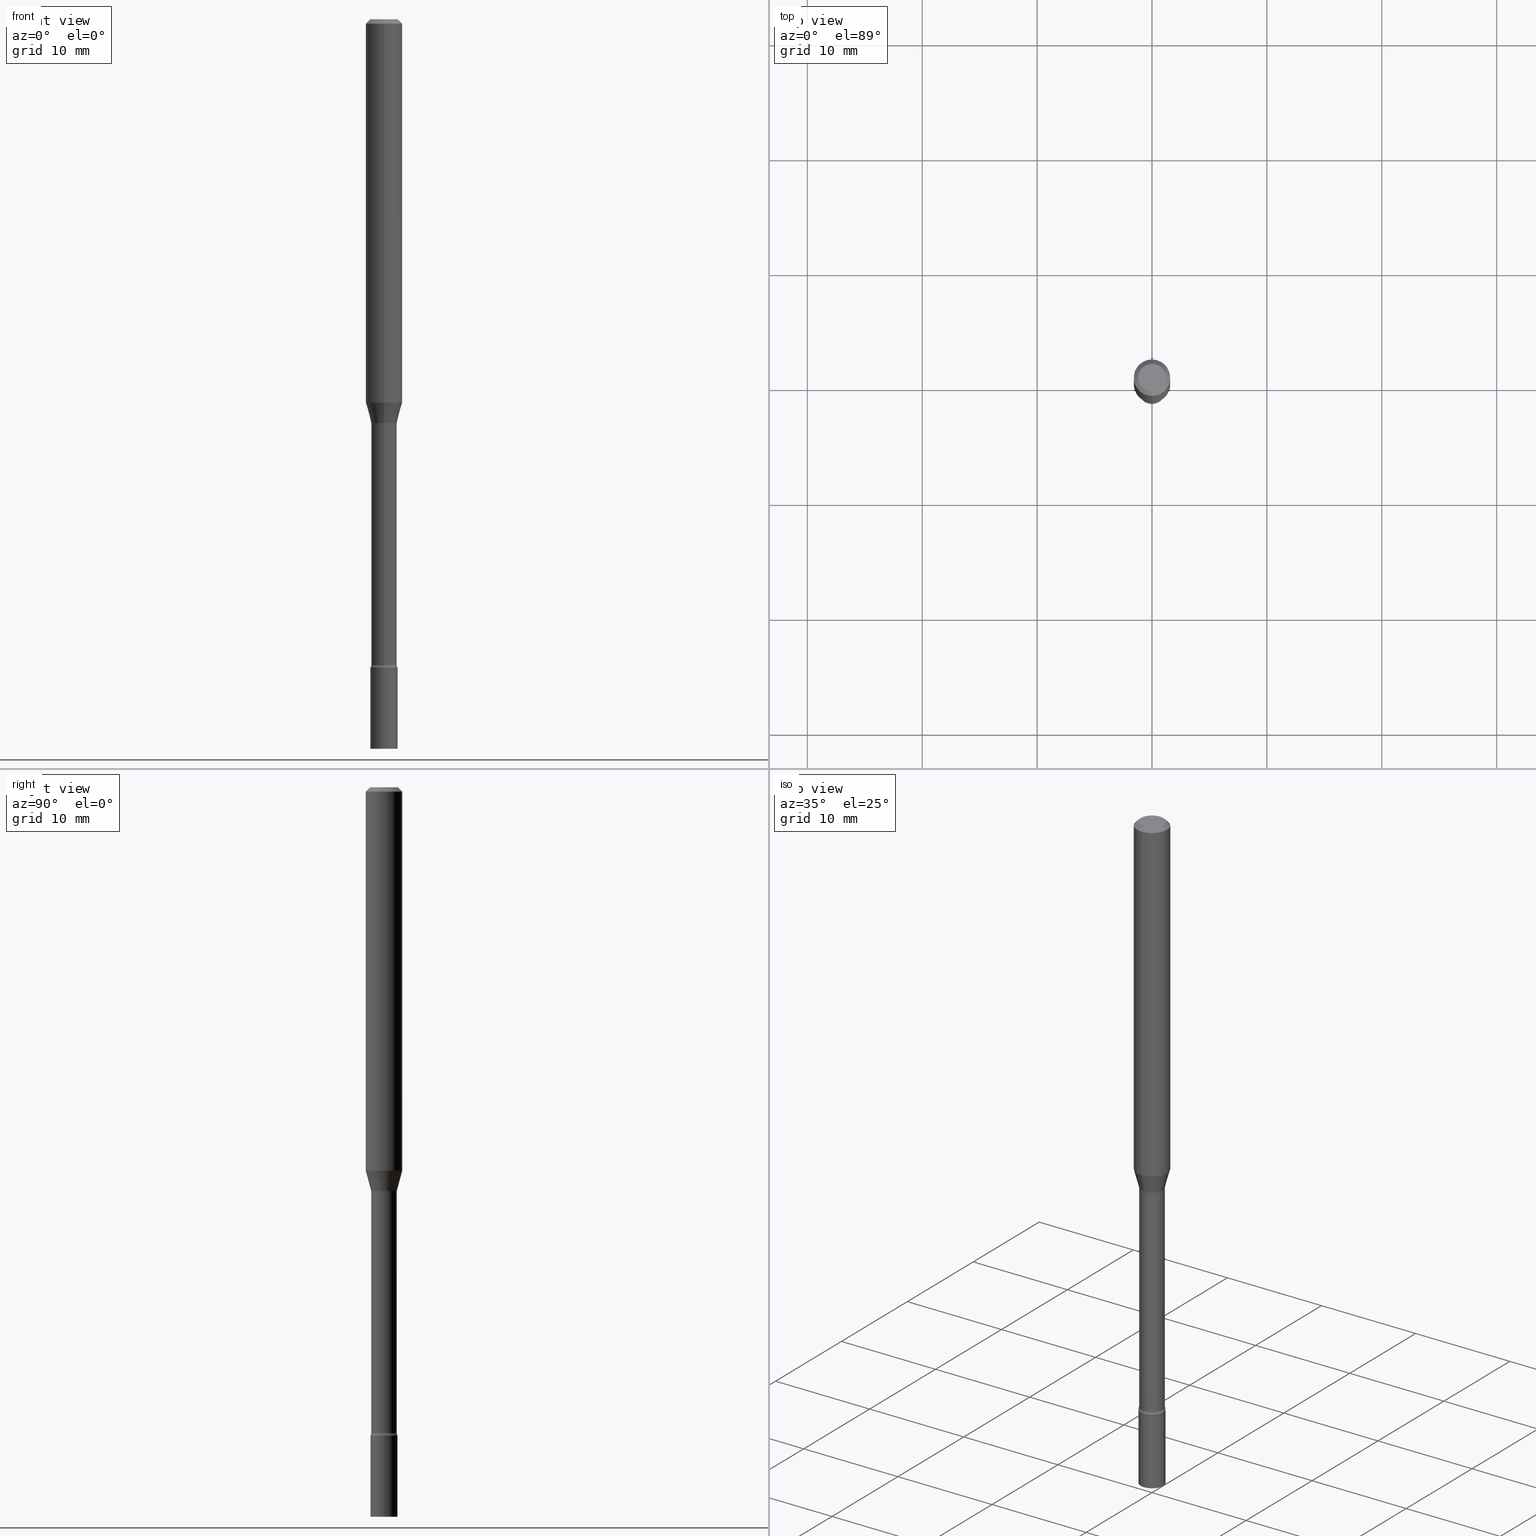
[diagram: canonical four-view strip — front | top / right | iso, engineering-drawing reading convention]
A machine part, canonical four-view strip (front | top / right | iso — engineering-drawing reading convention). The complete STEP part file that produces these views, byte-faithful:
ISO-10303-21;
HEADER;
FILE_DESCRIPTION (( 'STEP AP203' ),
    '1' );
FILE_NAME ('03448.STEP',
    '2024-03-08T21:23:43',
    ( '' ),
    ( '' ),
    'SwSTEP 2.0',
    'SolidWorks 2023',
    '' );
FILE_SCHEMA (( 'CONFIG_CONTROL_DESIGN' ));
ENDSEC;

DATA;
#1 = ORIENTED_EDGE ( 'NONE', *, *, #256, .T. ) ;
#2 = ORIENTED_EDGE ( 'NONE', *, *, #76, .F. ) ;
#3 = CARTESIAN_POINT ( 'NONE',  ( 3.389309736411832924E-29, -4.839174378695849730E-15, -1.385974787463811086 ) ) ;
#4 = ORIENTED_EDGE ( 'NONE', *, *, #36, .F. ) ;
#5 = AXIS2_PLACEMENT_3D ( 'NONE', #140, #389, #105 ) ;
#6 = AXIS2_PLACEMENT_3D ( 'NONE', #167, #330, #489 ) ;
#7 = CARTESIAN_POINT ( 'NONE',  ( 0.000000000000000000, 0.000000000000000000, 0.000000000000000000 ) ) ;
#8 = ORIENTED_EDGE ( 'NONE', *, *, #291, .F. ) ;
#9 = DIRECTION ( 'NONE',  ( -6.982962677686265922E-15, -1.000000000000000000, 3.491531319664936376E-15 ) ) ;
#10 = ORIENTED_EDGE ( 'NONE', *, *, #399, .T. ) ;
#11 = CARTESIAN_POINT ( 'NONE',  ( 4.440892098500625669E-16, 0.06250000000000000000, -2.182207074790585235E-16 ) ) ;
#12 = FACE_OUTER_BOUND ( 'NONE', #117, .T. ) ;
#13 = PRODUCT_DEFINITION ( 'UNKNOWN', '', #429, #197 ) ;
#14 = CARTESIAN_POINT ( 'NONE',  ( -3.087245492643026346E-16, -0.04421111260566881057, -1.382092501787272942 ) ) ;
#15 = ADVANCED_FACE ( 'NONE', ( #445 ), #293, .T. ) ;
#16 = CARTESIAN_POINT ( 'NONE',  ( -4.098999091801499574E-16, -0.05870000000000485246, -1.385974787463810864 ) ) ;
#17 = DIRECTION ( 'NONE',  ( 4.937700262164548042E-15, 0.7071067811865451302, -0.7071067811865499042 ) ) ;
#18 = AXIS2_PLACEMENT_3D ( 'NONE', #3, #161, #484 ) ;
#19 = VERTEX_POINT ( 'NONE', #14 ) ;
#20 = DIRECTION ( 'NONE',  ( 1.839019923739598738E-15, 0.2588190451025247363, 0.9659258262890673130 ) ) ;
#21 = FACE_OUTER_BOUND ( 'NONE', #156, .T. ) ;
#22 = DIRECTION ( 'NONE',  ( -2.445433904763820190E-29, 3.491531319664936376E-15, 1.000000000000000000 ) ) ;
#23 = CC_DESIGN_DATE_AND_TIME_ASSIGNMENT ( #141, #224, ( #13 ) ) ;
#24 = PERSON_AND_ORGANIZATION_ROLE ( 'creator' ) ;
#25 = DIRECTION ( 'NONE',  ( -2.445433904763820190E-29, 3.491531319664936376E-15, 1.000000000000000000 ) ) ;
#26 = DIRECTION ( 'NONE',  ( 1.000000000000000000, -6.982962677686260400E-15, 0.000000000000000000 ) ) ;
#27 = DATE_AND_TIME ( #253, #39 ) ;
#28 =( NAMED_UNIT ( * ) PLANE_ANGLE_UNIT ( ) SI_UNIT ( $, .RADIAN. ) );
#29 = CARTESIAN_POINT ( 'NONE',  ( 5.431308702480443986E-29, -7.754691060975823701E-15, -2.221000000000000085 ) ) ;
#30 = EDGE_CURVE ( 'NONE', #278, #281, #381, .T. ) ;
#31 = APPROVAL_DATE_TIME ( #69, #341 ) ;
#32 = COORDINATED_UNIVERSAL_TIME_OFFSET ( 5, 0, .BEHIND. ) ;
#33 = ORIENTED_EDGE ( 'NONE', *, *, #76, .T. ) ;
#34 = CC_DESIGN_APPROVAL ( #354, ( #429 ) ) ;
#35 = ORIENTED_EDGE ( 'NONE', *, *, #316, .T. ) ;
#36 = EDGE_CURVE ( 'NONE', #317, #321, #485, .T. ) ;
#37 = ORIENTED_EDGE ( 'NONE', *, *, #427, .F. ) ;
#38 = CIRCLE ( 'NONE', #71, 0.01500000000000011394 ) ;
#39 = LOCAL_TIME ( 16, 23, 43.00000000000000000, #32 ) ;
#40 = ADVANCED_FACE ( 'NONE', ( #447 ), #469, .T. ) ;
#41 = EDGE_LOOP ( 'NONE', ( #442, #112 ) ) ;
#42 = CARTESIAN_POINT ( 'NONE',  ( 5.409967474910493395E-29, -7.724220572971457404E-15, -2.212273030308291144 ) ) ;
#43 = ORIENTED_EDGE ( 'NONE', *, *, #118, .T. ) ;
#44 = AXIS2_PLACEMENT_3D ( 'NONE', #217, #459, #174 ) ;
#45 = DIRECTION ( 'NONE',  ( -1.000000000000000000, 6.982962677686265922E-15, -4.883557194083112901E-29 ) ) ;
#46 = DIRECTION ( 'NONE',  ( -2.445468806185136597E-29, 3.491481338843145583E-15, 1.000000000000000000 ) ) ;
#47 = FACE_OUTER_BOUND ( 'NONE', #159, .T. ) ;
#48 = EDGE_CURVE ( 'NONE', #72, #488, #349, .T. ) ;
#49 = ORIENTED_EDGE ( 'NONE', *, *, #392, .T. ) ;
#50 = FACE_OUTER_BOUND ( 'NONE', #243, .T. ) ;
#51 = ORIENTED_EDGE ( 'NONE', *, *, #383, .F. ) ;
#52 = VERTEX_POINT ( 'NONE', #498 ) ;
#53 = LINE ( 'NONE', #292, #213 ) ;
#54 = AXIS2_PLACEMENT_3D ( 'NONE', #419, #466, #178 ) ;
#55 = CARTESIAN_POINT ( 'NONE',  ( 7.070125242451272636E-46, -1.009455363724353074E-31, -2.891153683883394930E-17 ) ) ;
#56 = VECTOR ( 'NONE', #492, 39.37007874015748143 ) ;
#57 = DIRECTION ( 'NONE',  ( -6.982962677686265922E-15, -1.000000000000000000, 3.483106191921935554E-15 ) ) ;
#58 = EDGE_CURVE ( 'NONE', #74, #162, #114, .T. ) ;
#59 = SHAPE_DEFINITION_REPRESENTATION ( #160, #397 ) ;
#60 = DIRECTION ( 'NONE',  ( -6.982962677686265922E-15, -1.000000000000000000, 3.491531319664936376E-15 ) ) ;
#61 = CARTESIAN_POINT ( 'NONE',  ( 3.379815863390448975E-29, -4.825619256664330696E-15, -1.382092501787273164 ) ) ;
#62 = FACE_OUTER_BOUND ( 'NONE', #294, .T. ) ;
#63 = DIRECTION ( 'NONE',  ( 1.000000000000000000, 0.000000000000000000, 0.000000000000000000 ) ) ;
#64 = APPROVAL_STATUS ( 'not_yet_approved' ) ;
#65 = CARTESIAN_POINT ( 'NONE',  ( 5.431386218537188310E-29, -7.754580053570626508E-15, -2.221000000000000085 ) ) ;
#66 = CIRCLE ( 'NONE', #365, 0.04370000000000001661 ) ;
#67 = AXIS2_PLACEMENT_3D ( 'NONE', #179, #504, #60 ) ;
#68 = PERSON_AND_ORGANIZATION ( #268, #318 ) ;
#69 = DATE_AND_TIME ( #387, #122 ) ;
#70 = VECTOR ( 'NONE', #20, 39.37007874015748854 ) ;
#71 = AXIS2_PLACEMENT_3D ( 'NONE', #133, #286, #83 ) ;
#72 = VERTEX_POINT ( 'NONE', #146 ) ;
#73 = AXIS2_PLACEMENT_3D ( 'NONE', #42, #458, #327 ) ;
#74 = VERTEX_POINT ( 'NONE', #345 ) ;
#75 = ORIENTED_EDGE ( 'NONE', *, *, #225, .F. ) ;
#76 = EDGE_CURVE ( 'NONE', #198, #473, #420, .T. ) ;
#77 = EDGE_LOOP ( 'NONE', ( #238, #193, #92, #452 ) ) ;
#78 = AXIS2_PLACEMENT_3D ( 'NONE', #124, #201, #280 ) ;
#79 = AXIS2_PLACEMENT_3D ( 'NONE', #127, #376, #9 ) ;
#80 = DIRECTION ( 'NONE',  ( -2.445468806185136597E-29, 3.491481338843145583E-15, 1.000000000000000000 ) ) ;
#81 = ORIENTED_EDGE ( 'NONE', *, *, #230, .T. ) ;
#82 = CARTESIAN_POINT ( 'NONE',  ( 3.379815863390448975E-29, -4.825619256664330696E-15, -1.382092501787273164 ) ) ;
#83 = DIRECTION ( 'NONE',  ( 7.105427357601001859E-15, 1.000000000000000000, 0.000000000000000000 ) ) ;
#84 = CARTESIAN_POINT ( 'NONE',  ( 5.409967474910493395E-29, -7.724220572971457404E-15, -2.212273030308291144 ) ) ;
#85 = DIRECTION ( 'NONE',  ( -6.982962677686265922E-15, -1.000000000000000000, 3.491531319664936376E-15 ) ) ;
#86 = ORIENTED_EDGE ( 'NONE', *, *, #186, .F. ) ;
#87 = CC_DESIGN_PERSON_AND_ORGANIZATION_ASSIGNMENT ( #181, #393, ( #150 ) ) ;
#88 = CLOSED_SHELL ( 'NONE', ( #15, #323, #271, #508 ) ) ;
#89 = AXIS2_PLACEMENT_3D ( 'NONE', #296, #208, #211 ) ;
#90 = DIRECTION ( 'NONE',  ( 1.000000000000000000, -6.982962677686260400E-15, 0.000000000000000000 ) ) ;
#91 = DIMENSIONAL_EXPONENTS ( 1.000000000000000000, 0.000000000000000000, 0.000000000000000000, 0.000000000000000000, 0.000000000000000000, 0.000000000000000000, 0.000000000000000000 ) ;
#92 = ORIENTED_EDGE ( 'NONE', *, *, #316, .F. ) ;
#93 = DIRECTION ( 'NONE',  ( -1.807323732225328562E-15, -0.2588190451025179639, 0.9659258262890690894 ) ) ;
#94 = CARTESIAN_POINT ( 'NONE',  ( 3.668150857145737222E-31, -5.237296979497415338E-17, -0.01500000000000003067 ) ) ;
#95 = ORIENTED_EDGE ( 'NONE', *, *, #343, .F. ) ;
#96 = ORIENTED_EDGE ( 'NONE', *, *, #235, .T. ) ;
#97 = CARTESIAN_POINT ( 'NONE',  ( -3.051554690148356337E-16, -0.04370000000000771184, -2.212273030308291144 ) ) ;
#98 = CC_DESIGN_PERSON_AND_ORGANIZATION_ASSIGNMENT ( #68, #310, ( #13 ) ) ;
#99 = FACE_OUTER_BOUND ( 'NONE', #120, .T. ) ;
#100 = FACE_OUTER_BOUND ( 'NONE', #331, .T. ) ;
#101 = ADVANCED_FACE ( 'NONE', ( #100 ), #518, .F. ) ;
#102 = DIRECTION ( 'NONE',  ( 0.000000000000000000, 0.000000000000000000, 1.000000000000000000 ) ) ;
#103 = VECTOR ( 'NONE', #460, 39.37007874015748143 ) ;
#104 = CIRCLE ( 'NONE', #451, 0.04649999999999999967 ) ;
#105 = DIRECTION ( 'NONE',  ( -6.982962677686265922E-15, -1.000000000000000000, 3.491531319664936376E-15 ) ) ;
#106 = LINE ( 'NONE', #258, #103 ) ;
#107 = SECURITY_CLASSIFICATION_LEVEL ( 'unclassified' ) ;
#108 = PLANE ( 'NONE',  #191 ) ;
#109 = EDGE_CURVE ( 'NONE', #488, #370, #106, .T. ) ;
#110 = CIRCLE ( 'NONE', #89, 0.04749999999999999362 ) ;
#111 = LOCAL_TIME ( 16, 23, 43.00000000000000000, #356 ) ;
#112 = ORIENTED_EDGE ( 'NONE', *, *, #343, .T. ) ;
#113 = CARTESIAN_POINT ( 'NONE',  ( -3.051554690148898679E-16, -0.04370000000000000273, 1.525799186693577041E-16 ) ) ;
#114 = CIRCLE ( 'NONE', #54, 0.01500000000000002720 ) ;
#115 = CIRCLE ( 'NONE', #351, 0.04749999999999999362 ) ;
#116 = ORIENTED_EDGE ( 'NONE', *, *, #118, .F. ) ;
#117 = EDGE_LOOP ( 'NONE', ( #405, #4 ) ) ;
#118 = EDGE_CURVE ( 'NONE', #281, #321, #232, .T. ) ;
#119 = ORIENTED_EDGE ( 'NONE', *, *, #200, .F. ) ;
#120 = EDGE_LOOP ( 'NONE', ( #75, #49, #81, #153 ) ) ;
#121 = ORIENTED_EDGE ( 'NONE', *, *, #367, .F. ) ;
#122 = LOCAL_TIME ( 16, 23, 43.00000000000000000, #148 ) ;
#123 = LINE ( 'NONE', #443, #205 ) ;
#124 = CARTESIAN_POINT ( 'NONE',  ( 3.389358108901824136E-29, -4.839105106536991295E-15, -1.385974787463811086 ) ) ;
#125 = EDGE_LOOP ( 'NONE', ( #433, #212, #481, #119 ) ) ;
#126 = DIRECTION ( 'NONE',  ( -4.851104656540964275E-15, -0.7071067811865500152, -0.7071067811865450192 ) ) ;
#127 = CARTESIAN_POINT ( 'NONE',  ( 3.247077645124656816E-16, 0.04649999999999224892, -2.221000000000000529 ) ) ;
#128 = EDGE_LOOP ( 'NONE', ( #411, #416, #287, #377 ) ) ;
#129 = ADVANCED_FACE ( 'NONE', ( #251 ), #216, .T. ) ;
#130 = LINE ( 'NONE', #11, #56 ) ;
#131 = CARTESIAN_POINT ( 'NONE',  ( -4.364351673553912750E-16, -0.06250000000000005551, -0.01499999999999981209 ) ) ;
#132 = CARTESIAN_POINT ( 'NONE',  ( 6.113672015462842613E-29, -8.728703347107864943E-15, -2.500000000000000000 ) ) ;
#133 = CARTESIAN_POINT ( 'NONE',  ( 4.170885858912335518E-16, 0.05869999999999236939, -2.212273030308291588 ) ) ;
#134 = ORIENTED_EDGE ( 'NONE', *, *, #109, .F. ) ;
#135 = CARTESIAN_POINT ( 'NONE',  ( 3.668150857145737222E-31, -5.237296979497415338E-17, -0.01500000000000003067 ) ) ;
#136 = EDGE_CURVE ( 'NONE', #19, #74, #494, .T. ) ;
#137 = DIRECTION ( 'NONE',  ( 2.438088387897960049E-29, -3.491481338843145188E-15, -1.000000000000000000 ) ) ;
#138 = DIRECTION ( 'NONE',  ( -6.982962677686266711E-15, -1.000000000000000000, 3.491531319664935982E-15 ) ) ;
#139 = CARTESIAN_POINT ( 'NONE',  ( 3.247077645124725348E-16, 0.04649999999999127748, -2.500000000000000000 ) ) ;
#140 = CARTESIAN_POINT ( 'NONE',  ( 3.389358108901824136E-29, -4.839105106536991295E-15, -1.385974787463811086 ) ) ;
#141 = DATE_AND_TIME ( #259, #252 ) ;
#142 =( CONVERSION_BASED_UNIT ( 'INCH', #502 ) LENGTH_UNIT ( ) NAMED_UNIT ( #91 ) );
#143 = CIRCLE ( 'NONE', #434, 0.06250000000000000000 ) ;
#144 = CIRCLE ( 'NONE', #18, 0.04370000000000001661 ) ;
#145 = VECTOR ( 'NONE', #248, 39.37007874015748143 ) ;
#146 = CARTESIAN_POINT ( 'NONE',  ( -0.04649999999999999967, -7.911239328210799240E-15, -2.500000000000000000 ) ) ;
#147 = ADVANCED_FACE ( 'NONE', ( #62 ), #500, .T. ) ;
#148 = COORDINATED_UNIVERSAL_TIME_OFFSET ( 5, 0, .BEHIND. ) ;
#149 = CIRCLE ( 'NONE', #476, 0.01500000000000002720 ) ;
#150 = SECURITY_CLASSIFICATION ( '', '', #107 ) ;
#151 = DATE_AND_TIME ( #514, #111 ) ;
#152 = FACE_OUTER_BOUND ( 'NONE', #457, .T. ) ;
#153 = ORIENTED_EDGE ( 'NONE', *, *, #479, .F. ) ;
#154 = APPLICATION_CONTEXT ( 'configuration controlled 3d designs of mechanical parts and assemblies' ) ;
#155 = CIRCLE ( 'NONE', #507, 0.04649999999999999967 ) ;
#156 = EDGE_LOOP ( 'NONE', ( #227, #8, #43, #231 ) ) ;
#157 = PLANE ( 'NONE',  #172 ) ;
#158 = ORIENTED_EDGE ( 'NONE', *, *, #432, .F. ) ;
#159 = EDGE_LOOP ( 'NONE', ( #437, #319, #234, #95 ) ) ;
#160 = PRODUCT_DEFINITION_SHAPE ( 'NONE', 'NONE',  #13 ) ;
#161 = DIRECTION ( 'NONE',  ( -2.445433904763820190E-29, 3.491531319664936376E-15, 1.000000000000000000 ) ) ;
#162 = VERTEX_POINT ( 'NONE', #371 ) ;
#163 = AXIS2_PLACEMENT_3D ( 'NONE', #299, #307, #428 ) ;
#164 = LINE ( 'NONE', #295, #145 ) ;
#165 = DIRECTION ( 'NONE',  ( -2.445468806185136597E-29, 3.491481338843145583E-15, 1.000000000000000000 ) ) ;
#166 = CARTESIAN_POINT ( 'NONE',  ( 5.431308702480443986E-29, -7.754691060975823701E-15, -2.221000000000000085 ) ) ;
#167 = CARTESIAN_POINT ( 'NONE',  ( 3.212902632905481440E-29, -4.587304587529570230E-15, -1.313837444817705258 ) ) ;
#168 = ORIENTED_EDGE ( 'NONE', *, *, #235, .F. ) ;
#169 = CARTESIAN_POINT ( 'NONE',  ( 3.304023721285013606E-16, 0.04649999999999231831, -2.221000000000000529 ) ) ;
#170 = DIRECTION ( 'NONE',  ( -6.982962677686266711E-15, -1.000000000000000000, 5.874941921858630857E-15 ) ) ;
#171 = DIRECTION ( 'NONE',  ( -2.445433904763820190E-29, 3.491531319664936376E-15, 1.000000000000000000 ) ) ;
#172 = AXIS2_PLACEMENT_3D ( 'NONE', #320, #474, #480 ) ;
#173 = DIRECTION ( 'NONE',  ( -2.445433904763820190E-29, 3.491531319664936376E-15, 1.000000000000000000 ) ) ;
#174 = DIRECTION ( 'NONE',  ( -6.982962677686265922E-15, -1.000000000000000000, 4.370956789862821150E-15 ) ) ;
#175 = CARTESIAN_POINT ( 'NONE',  ( 3.379815863390448975E-29, -4.825619256664330696E-15, -1.382092501787273164 ) ) ;
#176 = CYLINDRICAL_SURFACE ( 'NONE', #303, 0.04649999999999999967 ) ;
#177 = DIRECTION ( 'NONE',  ( -6.982962677686266711E-15, -1.000000000000000000, 5.874941921858630857E-15 ) ) ;
#178 = DIRECTION ( 'NONE',  ( 7.105427357601001859E-15, 1.000000000000000000, 0.000000000000000000 ) ) ;
#179 = CARTESIAN_POINT ( 'NONE',  ( 5.410044686383591992E-29, -7.724110001747376601E-15, -2.212273030308291144 ) ) ;
#180 = CARTESIAN_POINT ( 'NONE',  ( -4.098999091801303838E-16, -0.05870000000000782231, -2.212273030308291144 ) ) ;
#181 = PERSON_AND_ORGANIZATION ( #268, #318 ) ;
#182 = AXIS2_PLACEMENT_3D ( 'NONE', #180, #348, #300 ) ;
#183 = CONICAL_SURFACE ( 'NONE', #477, 0.04421111260566398804, 0.2617993877991500740 ) ;
#184 = CC_DESIGN_PERSON_AND_ORGANIZATION_ASSIGNMENT ( #468, #24, ( #429 ) ) ;
#185 = CARTESIAN_POINT ( 'NONE',  ( 3.840629472727447874E-16, 0.04749999999999999362, -1.947592745229183872E-16 ) ) ;
#186 = EDGE_CURVE ( 'NONE', #278, #162, #249, .T. ) ;
#187 = PERSON_AND_ORGANIZATION ( #268, #318 ) ;
#188 = APPROVAL_ROLE ( '' ) ;
#189 = PERSON_AND_ORGANIZATION ( #268, #318 ) ;
#190 = ADVANCED_FACE ( 'NONE', ( #446 ), #493, .T. ) ;
#191 = AXIS2_PLACEMENT_3D ( 'NONE', #65, #261, #322 ) ;
#192 = VERTEX_POINT ( 'NONE', #417 ) ;
#193 = ORIENTED_EDGE ( 'NONE', *, *, #225, .T. ) ;
#194 = AXIS2_PLACEMENT_3D ( 'NONE', #94, #418, #385 ) ;
#195 = ADVANCED_FACE ( 'NONE', ( #239 ), #260, .F. ) ;
#196 = ORIENTED_EDGE ( 'NONE', *, *, #276, .T. ) ;
#197 = DESIGN_CONTEXT ( 'detailed design', #154, 'design' ) ;
#198 = VERTEX_POINT ( 'NONE', #131 ) ;
#199 = CARTESIAN_POINT ( 'NONE',  ( 3.379815863390448975E-29, -4.825619256664330696E-15, -1.382092501787273164 ) ) ;
#200 = EDGE_CURVE ( 'NONE', #19, #192, #149, .T. ) ;
#201 = DIRECTION ( 'NONE',  ( -2.445433904763820190E-29, 3.491531319664936376E-15, 1.000000000000000000 ) ) ;
#202 = ORIENTED_EDGE ( 'NONE', *, *, #200, .T. ) ;
#203 = CLOSED_SHELL ( 'NONE', ( #195, #147, #332, #40, #439, #406, #511, #190, #467, #360, #309, #516, #129, #101 ) ) ;
#204 = APPLICATION_CONTEXT ( 'configuration controlled 3d designs of mechanical parts and assemblies' ) ;
#205 = VECTOR ( 'NONE', #17, 39.37007874015748143 ) ;
#206 = CC_DESIGN_SECURITY_CLASSIFICATION ( #150, ( #429 ) ) ;
#207 = CARTESIAN_POINT ( 'NONE',  ( 3.389309736411832924E-29, -4.839174378695849730E-15, -1.385974787463811086 ) ) ;
#208 = DIRECTION ( 'NONE',  ( -2.445433904763820190E-29, 3.491531319664936376E-15, 1.000000000000000000 ) ) ;
#209 = DIRECTION ( 'NONE',  ( 1.000000000000000000, -6.982962677686267499E-15, 4.876176775795936353E-29 ) ) ;
#210 = EDGE_CURVE ( 'NONE', #278, #317, #38, .T. ) ;
#211 = DIRECTION ( 'NONE',  ( -6.982962677686266711E-15, -1.000000000000000000, 3.491531319664936376E-15 ) ) ;
#212 = ORIENTED_EDGE ( 'NONE', *, *, #58, .T. ) ;
#213 = VECTOR ( 'NONE', #93, 39.37007874015748854 ) ;
#214 = DIRECTION ( 'NONE',  ( -6.982962677686265922E-15, -1.000000000000000000, 3.483106191921935554E-15 ) ) ;
#215 = DIRECTION ( 'NONE',  ( -6.982962677686266711E-15, -1.000000000000000000, 3.491531319664936376E-15 ) ) ;
#216 = CYLINDRICAL_SURFACE ( 'NONE', #395, 0.04370000000000000273 ) ;
#217 = CARTESIAN_POINT ( 'NONE',  ( 3.212902632905481440E-29, -4.587304587529570230E-15, -1.313837444817705258 ) ) ;
#218 = CARTESIAN_POINT ( 'NONE',  ( 0.000000000000000000, 0.000000000000000000, 0.000000000000000000 ) ) ;
#219 = MECHANICAL_CONTEXT ( 'NONE', #204, 'mechanical' ) ;
#220 = EDGE_CURVE ( 'NONE', #72, #402, #284, .T. ) ;
#221 = PERSON_AND_ORGANIZATION ( #268, #318 ) ;
#222 = AXIS2_PLACEMENT_3D ( 'NONE', #240, #408, #490 ) ;
#223 = CONICAL_SURFACE ( 'NONE', #194, 0.06250000000000000000, 0.7853981633974483900 ) ;
#224 = DATE_TIME_ROLE ( 'creation_date' ) ;
#225 = EDGE_CURVE ( 'NONE', #74, #400, #450, .T. ) ;
#226 = APPLICATION_PROTOCOL_DEFINITION ( 'international standard', 'config_control_design', 1994, #204 ) ;
#227 = ORIENTED_EDGE ( 'NONE', *, *, #210, .F. ) ;
#228 = AXIS2_PLACEMENT_3D ( 'NONE', #306, #298, #57 ) ;
#229 = ORIENTED_EDGE ( 'NONE', *, *, #136, .F. ) ;
#230 = EDGE_CURVE ( 'NONE', #19, #274, #53, .T. ) ;
#231 = ORIENTED_EDGE ( 'NONE', *, *, #454, .T. ) ;
#232 = CIRCLE ( 'NONE', #182, 0.01500000000000011394 ) ;
#233 = AXIS2_PLACEMENT_3D ( 'NONE', #315, #272, #364 ) ;
#234 = ORIENTED_EDGE ( 'NONE', *, *, #109, .T. ) ;
#235 = EDGE_CURVE ( 'NONE', #192, #162, #66, .T. ) ;
#236 = CARTESIAN_POINT ( 'NONE',  ( 0.04649999999999999967, -8.079287818083037216E-15, -2.221000000000000085 ) ) ;
#237 = CARTESIAN_POINT ( 'NONE',  ( 3.141388490182971384E-16, 0.04421111260565916551, -1.382092501787273386 ) ) ;
#238 = ORIENTED_EDGE ( 'NONE', *, *, #136, .T. ) ;
#239 = FACE_OUTER_BOUND ( 'NONE', #125, .T. ) ;
#240 = CARTESIAN_POINT ( 'NONE',  ( 3.668150857145737222E-31, -5.237296979497415338E-17, -0.01500000000000003067 ) ) ;
#241 = AXIS2_PLACEMENT_3D ( 'NONE', #344, #347, #499 ) ;
#242 = CARTESIAN_POINT ( 'NONE',  ( 5.431386218537188310E-29, -7.754580053570626508E-15, -2.221000000000000085 ) ) ;
#243 = EDGE_LOOP ( 'NONE', ( #475, #436 ) ) ;
#244 = CARTESIAN_POINT ( 'NONE',  ( -0.04649999999999999967, 3.304023721284465841E-16, -2.287304816968531530E-30 ) ) ;
#245 = DIRECTION ( 'NONE',  ( -2.445433904763820190E-29, 3.491531319664936376E-15, 1.000000000000000000 ) ) ;
#246 = CARTESIAN_POINT ( 'NONE',  ( 0.000000000000000000, 0.000000000000000000, 0.000000000000000000 ) ) ;
#247 = EDGE_LOOP ( 'NONE', ( #267, #270, #394, #134 ) ) ;
#248 = DIRECTION ( 'NONE',  ( -2.445433904763820470E-29, 3.491531319664936376E-15, 1.000000000000000000 ) ) ;
#249 = LINE ( 'NONE', #333, #302 ) ;
#250 = DIRECTION ( 'NONE',  ( -6.982962677686266711E-15, -1.000000000000000000, 6.179098042681422745E-15 ) ) ;
#251 = FACE_OUTER_BOUND ( 'NONE', #456, .T. ) ;
#252 = LOCAL_TIME ( 16, 23, 43.00000000000000000, #308 ) ;
#253 = CALENDAR_DATE ( 2024, 8, 3 ) ;
#254 = DIRECTION ( 'NONE',  ( -2.445433904763820190E-29, 3.491531319664936376E-15, 1.000000000000000000 ) ) ;
#255 = CC_DESIGN_DATE_AND_TIME_ASSIGNMENT ( #27, #352, ( #150 ) ) ;
#256 = EDGE_CURVE ( 'NONE', #473, #198, #143, .T. ) ;
#257 = PERSON_AND_ORGANIZATION_ROLE ( 'design_supplier' ) ;
#258 = CARTESIAN_POINT ( 'NONE',  ( 0.04649999999999999967, -3.247077645124114474E-16, 2.267422200745110326E-30 ) ) ;
#259 = CALENDAR_DATE ( 2024, 8, 3 ) ;
#260 = TOROIDAL_SURFACE ( 'NONE', #78, 0.05870000000000000911, 0.01500000000000002720 ) ;
#261 = DIRECTION ( 'NONE',  ( -2.438088387897960049E-29, 3.491481338843145188E-15, 1.000000000000000000 ) ) ;
#262 = APPROVAL_PERSON_ORGANIZATION ( #355, #354, #313 ) ;
#263 = EDGE_CURVE ( 'NONE', #370, #402, #505, .T. ) ;
#264 = APPLICATION_PROTOCOL_DEFINITION ( 'international standard', 'config_control_design', 1994, #154 ) ;
#265 = ORIENTED_EDGE ( 'NONE', *, *, #472, .F. ) ;
#266 = LINE ( 'NONE', #113, #435 ) ;
#267 = ORIENTED_EDGE ( 'NONE', *, *, #491, .T. ) ;
#268 = PERSON ( 'UNSPECIFIED', 'UNSPECIFIED', 'UNSPECIFIED', ('UNSPECIFIED'), ('UNSPECIFIED'), ('UNSPECIFIED') ) ;
#269 = AXIS2_PLACEMENT_3D ( 'NONE', #242, #487, #90 ) ;
#270 = ORIENTED_EDGE ( 'NONE', *, *, #220, .T. ) ;
#271 = ADVANCED_FACE ( 'NONE', ( #47 ), #176, .T. ) ;
#272 = DIRECTION ( 'NONE',  ( -2.445433904763820190E-29, 3.491531319664936376E-15, 1.000000000000000000 ) ) ;
#273 = EDGE_LOOP ( 'NONE', ( #326, #196 ) ) ;
#274 = VERTEX_POINT ( 'NONE', #338 ) ;
#275 = AXIS2_PLACEMENT_3D ( 'NONE', #166, #285, #170 ) ;
#276 = EDGE_CURVE ( 'NONE', #52, #483, #110, .T. ) ;
#277 = AXIS2_PLACEMENT_3D ( 'NONE', #430, #102, #63 ) ;
#278 = VERTEX_POINT ( 'NONE', #407 ) ;
#279 = FACE_OUTER_BOUND ( 'NONE', #77, .T. ) ;
#280 = DIRECTION ( 'NONE',  ( -6.982962677686265922E-15, -1.000000000000000000, 3.491531319664936376E-15 ) ) ;
#281 = VERTEX_POINT ( 'NONE', #97 ) ;
#282 = ORIENTED_EDGE ( 'NONE', *, *, #36, .T. ) ;
#283 = MANIFOLD_SOLID_BREP ( 'Body-Move/Copy2[1]', #88 ) ;
#284 = LINE ( 'NONE', #244, #301 ) ;
#285 = DIRECTION ( 'NONE',  ( -2.445433904763820190E-29, 3.491531319664936376E-15, 1.000000000000000000 ) ) ;
#286 = DIRECTION ( 'NONE',  ( 1.000000000000000000, -7.105427357601001070E-15, 4.926316120630616411E-29 ) ) ;
#287 = ORIENTED_EDGE ( 'NONE', *, *, #415, .T. ) ;
#288 = AXIS2_PLACEMENT_3D ( 'NONE', #218, #506, #138 ) ;
#289 = CIRCLE ( 'NONE', #241, 0.04649999999999999967 ) ;
#290 = CARTESIAN_POINT ( 'NONE',  ( -0.04649999999999999967, -7.911239328210799240E-15, -2.221000000000000085 ) ) ;
#291 = EDGE_CURVE ( 'NONE', #281, #278, #358, .T. ) ;
#292 = CARTESIAN_POINT ( 'NONE',  ( -3.087245492643026346E-16, -0.04421111260566881057, -1.382092501787272942 ) ) ;
#293 = CYLINDRICAL_SURFACE ( 'NONE', #512, 0.04649999999999999967 ) ;
#294 = EDGE_LOOP ( 'NONE', ( #440, #520, #168, #121 ) ) ;
#295 = CARTESIAN_POINT ( 'NONE',  ( -4.364351673553916201E-16, -0.06250000000000000000, 2.182207074790585235E-16 ) ) ;
#296 = CARTESIAN_POINT ( 'NONE',  ( 7.070125242451272636E-46, -1.009455363724353074E-31, -2.891153683883394930E-17 ) ) ;
#297 = DIRECTION ( 'NONE',  ( -1.000000000000000000, 6.982962677686265922E-15, -4.876176775795935793E-29 ) ) ;
#298 = DIRECTION ( 'NONE',  ( -2.445433904763820190E-29, 3.491531319664936376E-15, 1.000000000000000000 ) ) ;
#299 = CARTESIAN_POINT ( 'NONE',  ( 0.000000000000000000, 0.000000000000000000, 0.000000000000000000 ) ) ;
#300 = DIRECTION ( 'NONE',  ( -6.982962677686263555E-15, -1.000000000000000000, 0.000000000000000000 ) ) ;
#301 = VECTOR ( 'NONE', #410, 39.37007874015748143 ) ;
#302 = VECTOR ( 'NONE', #444, 39.37007874015748143 ) ;
#303 = AXIS2_PLACEMENT_3D ( 'NONE', #7, #165, #404 ) ;
#304 = APPROVAL_DATE_TIME ( #151, #515 ) ;
#305 =( LENGTH_UNIT ( ) NAMED_UNIT ( * ) SI_UNIT ( $, .METRE. ) );
#306 = CARTESIAN_POINT ( 'NONE',  ( 3.668150857145737222E-31, -5.237296979497415338E-17, -0.01500000000000003067 ) ) ;
#307 = DIRECTION ( 'NONE',  ( -2.445433904763820190E-29, 3.491531319664936376E-15, 1.000000000000000000 ) ) ;
#308 = COORDINATED_UNIVERSAL_TIME_OFFSET ( 5, 0, .BEHIND. ) ;
#309 = ADVANCED_FACE ( 'NONE', ( #12 ), #378, .F. ) ;
#310 = PERSON_AND_ORGANIZATION_ROLE ( 'creator' ) ;
#311 = AXIS2_PLACEMENT_3D ( 'NONE', #175, #22, #340 ) ;
#312 = TOROIDAL_SURFACE ( 'NONE', #67, 0.05870000000000009932, 0.01500000000000011394 ) ;
#313 = APPROVAL_ROLE ( '' ) ;
#314 = FACE_OUTER_BOUND ( 'NONE', #273, .T. ) ;
#315 = CARTESIAN_POINT ( 'NONE',  ( 5.410044686383591992E-29, -7.724110001747376601E-15, -2.212273030308291144 ) ) ;
#316 = EDGE_CURVE ( 'NONE', #274, #400, #441, .T. ) ;
#317 = VERTEX_POINT ( 'NONE', #169 ) ;
#318 = ORGANIZATION ( 'UNSPECIFIED', 'UNSPECIFIED', '' ) ;
#319 = ORIENTED_EDGE ( 'NONE', *, *, #48, .T. ) ;
#320 = CARTESIAN_POINT ( 'NONE',  ( 3.316907271900976096E-16, 0.04749999999999999362, -1.803035061035014557E-16 ) ) ;
#321 = VERTEX_POINT ( 'NONE', #380 ) ;
#322 = DIRECTION ( 'NONE',  ( 1.000000000000000000, -6.982962677686265922E-15, 4.876176775795935793E-29 ) ) ;
#323 = ADVANCED_FACE ( 'NONE', ( #353 ), #108, .T. ) ;
#324 = DIRECTION ( 'NONE',  ( -6.982962677686266711E-15, -1.000000000000000000, 6.179098042681422745E-15 ) ) ;
#325 = AXIS2_PLACEMENT_3D ( 'NONE', #384, #342, #85 ) ;
#326 = ORIENTED_EDGE ( 'NONE', *, *, #472, .T. ) ;
#327 = DIRECTION ( 'NONE',  ( -6.982962677686266711E-15, -1.000000000000000000, 6.251368406554380939E-15 ) ) ;
#328 = ORIENTED_EDGE ( 'NONE', *, *, #30, .T. ) ;
#329 = CARTESIAN_POINT ( 'NONE',  ( -4.287811248607203282E-16, -0.06250000000000005551, -0.01499999999999981209 ) ) ;
#330 = DIRECTION ( 'NONE',  ( -2.445433904763820190E-29, 3.491531319664936376E-15, 1.000000000000000000 ) ) ;
#331 = EDGE_LOOP ( 'NONE', ( #448, #229, #202, #96 ) ) ;
#332 = ADVANCED_FACE ( 'NONE', ( #152 ), #374, .F. ) ;
#333 = CARTESIAN_POINT ( 'NONE',  ( 3.105071755271637513E-16, 0.04370000000000000273, -1.525799186693577041E-16 ) ) ;
#334 = ORIENTED_EDGE ( 'NONE', *, *, #432, .T. ) ;
#335 = UNCERTAINTY_MEASURE_WITH_UNIT (LENGTH_MEASURE( 1.000000000000000082E-05 ), #142, 'distance_accuracy_value', 'NONE');
#336 = APPROVAL_PERSON_ORGANIZATION ( #221, #515, #188 ) ;
#337 = DIRECTION ( 'NONE',  ( -6.982962677686266711E-15, -1.000000000000000000, 6.179098042681422745E-15 ) ) ;
#338 = CARTESIAN_POINT ( 'NONE',  ( -4.364351673553592768E-16, -0.06250000000000455191, -1.313837444817705036 ) ) ;
#339 = PLANE ( 'NONE',  #366 ) ;
#340 = DIRECTION ( 'NONE',  ( -6.982962677686266711E-15, -1.000000000000000000, 6.179098042681422745E-15 ) ) ;
#341 = APPROVAL ( #64, 'UNSPECIFIED' ) ;
#342 = DIRECTION ( 'NONE',  ( -2.445433904763820190E-29, 3.491531319664936376E-15, 1.000000000000000000 ) ) ;
#343 = EDGE_CURVE ( 'NONE', #402, #370, #104, .T. ) ;
#344 = CARTESIAN_POINT ( 'NONE',  ( 6.113672015462842613E-29, -8.728703347107864943E-15, -2.500000000000000000 ) ) ;
#345 = CARTESIAN_POINT ( 'NONE',  ( 3.791140294341959503E-16, 0.04421111260565916551, -1.382092501787273386 ) ) ;
#346 = CALENDAR_DATE ( 2024, 8, 3 ) ;
#347 = DIRECTION ( 'NONE',  ( -2.445468806185136597E-29, 3.491481338843145583E-15, 1.000000000000000000 ) ) ;
#348 = DIRECTION ( 'NONE',  ( -1.000000000000000000, 6.982962677686265922E-15, -4.883557194083112901E-29 ) ) ;
#349 = CIRCLE ( 'NONE', #372, 0.04649999999999999967 ) ;
#350 = EDGE_LOOP ( 'NONE', ( #35, #10, #2, #478 ) ) ;
#351 = AXIS2_PLACEMENT_3D ( 'NONE', #55, #245, #215 ) ;
#352 = DATE_TIME_ROLE ( 'classification_date' ) ;
#353 = FACE_OUTER_BOUND ( 'NONE', #41, .T. ) ;
#354 = APPROVAL ( #471, 'UNSPECIFIED' ) ;
#355 = PERSON_AND_ORGANIZATION ( #268, #318 ) ;
#356 = COORDINATED_UNIVERSAL_TIME_OFFSET ( 5, 0, .BEHIND. ) ;
#357 = DIRECTION ( 'NONE',  ( -2.445468806185136597E-29, 3.491481338843145583E-15, 1.000000000000000000 ) ) ;
#358 = CIRCLE ( 'NONE', #73, 0.04369999999999998191 ) ;
#359 = CC_DESIGN_PERSON_AND_ORGANIZATION_ASSIGNMENT ( #501, #257, ( #429 ) ) ;
#360 = ADVANCED_FACE ( 'NONE', ( #314 ), #157, .F. ) ;
#361 = ORIENTED_EDGE ( 'NONE', *, *, #276, .F. ) ;
#362 = CARTESIAN_POINT ( 'NONE',  ( 5.431386218537188310E-29, -7.754580053570626508E-15, -2.221000000000000085 ) ) ;
#363 = ORIENTED_EDGE ( 'NONE', *, *, #30, .F. ) ;
#364 = DIRECTION ( 'NONE',  ( -6.982962677686265922E-15, -1.000000000000000000, 3.491531319664936376E-15 ) ) ;
#365 = AXIS2_PLACEMENT_3D ( 'NONE', #207, #453, #413 ) ;
#366 = AXIS2_PLACEMENT_3D ( 'NONE', #139, #137, #297 ) ;
#367 = EDGE_CURVE ( 'NONE', #281, #192, #266, .T. ) ;
#368 = CARTESIAN_POINT ( 'NONE',  ( 4.440892098500948609E-16, 0.06249999999999544809, -1.313837444817705702 ) ) ;
#369 = PRODUCT ( '03448', '03448', '', ( #219 ) ) ;
#370 = VERTEX_POINT ( 'NONE', #236 ) ;
#371 = CARTESIAN_POINT ( 'NONE',  ( 3.105071755272180348E-16, 0.04369999999999516632, -1.385974787463811309 ) ) ;
#372 = AXIS2_PLACEMENT_3D ( 'NONE', #132, #46, #26 ) ;
#373 = CONICAL_SURFACE ( 'NONE', #396, 0.04421111260566398804, 0.2617993877991500740 ) ;
#374 = TOROIDAL_SURFACE ( 'NONE', #233, 0.05870000000000009932, 0.01500000000000011394 ) ;
#375 = DIRECTION ( 'NONE',  ( -6.982962677686266711E-15, -1.000000000000000000, 6.251368406554380939E-15 ) ) ;
#376 = DIRECTION ( 'NONE',  ( -2.445433904763819630E-29, 3.491531319664936376E-15, 1.000000000000000000 ) ) ;
#377 = ORIENTED_EDGE ( 'NONE', *, *, #256, .F. ) ;
#378 = PLANE ( 'NONE',  #79 ) ;
#379 = EDGE_LOOP ( 'NONE', ( #361, #495, #33, #158 ) ) ;
#380 = CARTESIAN_POINT ( 'NONE',  ( -3.247077645123575583E-16, -0.04650000000000783368, -2.221000000000000085 ) ) ;
#381 = CIRCLE ( 'NONE', #462, 0.04369999999999998191 ) ;
#382 = CIRCLE ( 'NONE', #44, 0.06250000000000000000 ) ;
#383 = EDGE_CURVE ( 'NONE', #52, #198, #409, .T. ) ;
#384 = CARTESIAN_POINT ( 'NONE',  ( 0.000000000000000000, 0.000000000000000000, 0.000000000000000000 ) ) ;
#385 = DIRECTION ( 'NONE',  ( 6.982962677686265922E-15, 1.000000000000000000, -3.483106191921935554E-15 ) ) ;
#386 = CARTESIAN_POINT ( 'NONE',  ( 0.000000000000000000, 0.000000000000000000, 0.000000000000000000 ) ) ;
#387 = CALENDAR_DATE ( 2024, 8, 3 ) ;
#388 = CYLINDRICAL_SURFACE ( 'NONE', #163, 0.06250000000000000000 ) ;
#389 = DIRECTION ( 'NONE',  ( -2.445433904763820190E-29, 3.491531319664936376E-15, 1.000000000000000000 ) ) ;
#390 = APPROVAL_DATE_TIME ( #510, #354 ) ;
#391 = FACE_OUTER_BOUND ( 'NONE', #350, .T. ) ;
#392 = EDGE_CURVE ( 'NONE', #74, #19, #463, .T. ) ;
#393 = PERSON_AND_ORGANIZATION_ROLE ( 'classification_officer' ) ;
#394 = ORIENTED_EDGE ( 'NONE', *, *, #263, .F. ) ;
#395 = AXIS2_PLACEMENT_3D ( 'NONE', #386, #254, #425 ) ;
#396 = AXIS2_PLACEMENT_3D ( 'NONE', #199, #171, #337 ) ;
#397 = ADVANCED_BREP_SHAPE_REPRESENTATION ( '03448', ( #283, #465, #277 ), #401 ) ;
#398 = ORIENTED_EDGE ( 'NONE', *, *, #367, .T. ) ;
#399 = EDGE_CURVE ( 'NONE', #400, #473, #130, .T. ) ;
#400 = VERTEX_POINT ( 'NONE', #368 ) ;
#401 =( GEOMETRIC_REPRESENTATION_CONTEXT ( 3 ) GLOBAL_UNCERTAINTY_ASSIGNED_CONTEXT ( ( #335 ) ) GLOBAL_UNIT_ASSIGNED_CONTEXT ( ( #142, #28, #424 ) ) REPRESENTATION_CONTEXT ( 'NONE', 'WORKASPACE' ) );
#402 = VERTEX_POINT ( 'NONE', #290 ) ;
#403 = DIRECTION ( 'NONE',  ( -2.445433904763820190E-29, 3.491531319664936376E-15, 1.000000000000000000 ) ) ;
#404 = DIRECTION ( 'NONE',  ( 1.000000000000000000, -6.982962677686267499E-15, 4.876176775795936353E-29 ) ) ;
#405 = ORIENTED_EDGE ( 'NONE', *, *, #454, .F. ) ;
#406 = ADVANCED_FACE ( 'NONE', ( #279 ), #373, .T. ) ;
#407 = CARTESIAN_POINT ( 'NONE',  ( 3.204547738278596731E-16, 0.04369999999999225893, -2.212273030308291588 ) ) ;
#408 = DIRECTION ( 'NONE',  ( 2.445433904763820190E-29, -3.491531319664936376E-15, -1.000000000000000000 ) ) ;
#409 = LINE ( 'NONE', #329, #519 ) ;
#410 = DIRECTION ( 'NONE',  ( -2.445468806185136877E-29, 3.491481338843145188E-15, 1.000000000000000000 ) ) ;
#411 = ORIENTED_EDGE ( 'NONE', *, *, #399, .F. ) ;
#412 = DIRECTION ( 'NONE',  ( -2.445433904763820190E-29, 3.491531319664936376E-15, 1.000000000000000000 ) ) ;
#413 = DIRECTION ( 'NONE',  ( -6.982962677686265133E-15, -1.000000000000000000, 6.251368406554375417E-15 ) ) ;
#414 = CARTESIAN_POINT ( 'NONE',  ( 0.04649999999999999967, -9.053411111620275650E-15, -2.500000000000000000 ) ) ;
#415 = EDGE_CURVE ( 'NONE', #274, #198, #164, .T. ) ;
#416 = ORIENTED_EDGE ( 'NONE', *, *, #479, .T. ) ;
#417 = CARTESIAN_POINT ( 'NONE',  ( -3.051554690148559962E-16, -0.04370000000000485996, -1.385974787463810864 ) ) ;
#418 = DIRECTION ( 'NONE',  ( 2.445433904763820190E-29, -3.491531319664936376E-15, -1.000000000000000000 ) ) ;
#419 = CARTESIAN_POINT ( 'NONE',  ( 4.170885858912127456E-16, 0.05869999999999517271, -1.385974787463811309 ) ) ;
#420 = CIRCLE ( 'NONE', #228, 0.06250000000000000000 ) ;
#421 = AXIS2_PLACEMENT_3D ( 'NONE', #82, #412, #324 ) ;
#422 = ORIENTED_EDGE ( 'NONE', *, *, #210, .T. ) ;
#423 = COORDINATED_UNIVERSAL_TIME_OFFSET ( 5, 0, .BEHIND. ) ;
#424 =( NAMED_UNIT ( * ) SI_UNIT ( $, .STERADIAN. ) SOLID_ANGLE_UNIT ( ) );
#425 = DIRECTION ( 'NONE',  ( -6.982962677686266711E-15, -1.000000000000000000, 3.491531319664935982E-15 ) ) ;
#426 = PERSON_AND_ORGANIZATION_ROLE ( 'design_owner' ) ;
#427 = EDGE_CURVE ( 'NONE', #162, #192, #144, .T. ) ;
#428 = DIRECTION ( 'NONE',  ( -6.982962677686265922E-15, -1.000000000000000000, 3.491531319664936376E-15 ) ) ;
#429 = PRODUCT_DEFINITION_FORMATION_WITH_SPECIFIED_SOURCE ( 'ANY', '', #369, .NOT_KNOWN. ) ;
#430 = CARTESIAN_POINT ( 'NONE',  ( 0.000000000000000000, 0.000000000000000000, 0.000000000000000000 ) ) ;
#431 = APPROVAL_ROLE ( '' ) ;
#432 = EDGE_CURVE ( 'NONE', #483, #473, #123, .T. ) ;
#433 = ORIENTED_EDGE ( 'NONE', *, *, #392, .F. ) ;
#434 = AXIS2_PLACEMENT_3D ( 'NONE', #135, #173, #214 ) ;
#435 = VECTOR ( 'NONE', #449, 39.37007874015748143 ) ;
#436 = ORIENTED_EDGE ( 'NONE', *, *, #48, .F. ) ;
#437 = ORIENTED_EDGE ( 'NONE', *, *, #220, .F. ) ;
#438 = CC_DESIGN_PERSON_AND_ORGANIZATION_ASSIGNMENT ( #187, #426, ( #369 ) ) ;
#439 = ADVANCED_FACE ( 'NONE', ( #391 ), #388, .T. ) ;
#440 = ORIENTED_EDGE ( 'NONE', *, *, #291, .T. ) ;
#441 = CIRCLE ( 'NONE', #6, 0.06250000000000000000 ) ;
#442 = ORIENTED_EDGE ( 'NONE', *, *, #263, .T. ) ;
#443 = CARTESIAN_POINT ( 'NONE',  ( 4.364351673553919652E-16, 0.06249999999999995143, -0.01500000000000024751 ) ) ;
#444 = DIRECTION ( 'NONE',  ( -2.445433904763820470E-29, 3.491531319664936376E-15, 1.000000000000000000 ) ) ;
#445 = FACE_OUTER_BOUND ( 'NONE', #247, .T. ) ;
#446 = FACE_OUTER_BOUND ( 'NONE', #128, .T. ) ;
#447 = FACE_OUTER_BOUND ( 'NONE', #379, .T. ) ;
#448 = ORIENTED_EDGE ( 'NONE', *, *, #58, .F. ) ;
#449 = DIRECTION ( 'NONE',  ( -2.445433904763820470E-29, 3.491531319664936376E-15, 1.000000000000000000 ) ) ;
#450 = LINE ( 'NONE', #237, #70 ) ;
#451 = AXIS2_PLACEMENT_3D ( 'NONE', #362, #357, #482 ) ;
#452 = ORIENTED_EDGE ( 'NONE', *, *, #230, .F. ) ;
#453 = DIRECTION ( 'NONE',  ( -2.445433904763820190E-29, 3.491531319664936376E-15, 1.000000000000000000 ) ) ;
#454 = EDGE_CURVE ( 'NONE', #321, #317, #155, .T. ) ;
#455 = DIRECTION ( 'NONE',  ( -2.445433904763820190E-29, 3.491531319664936376E-15, 1.000000000000000000 ) ) ;
#456 = EDGE_LOOP ( 'NONE', ( #86, #328, #398, #37 ) ) ;
#457 = EDGE_LOOP ( 'NONE', ( #363, #422, #282, #116 ) ) ;
#458 = DIRECTION ( 'NONE',  ( -2.445433904763820190E-29, 3.491531319664936376E-15, 1.000000000000000000 ) ) ;
#459 = DIRECTION ( 'NONE',  ( -2.445433904763820190E-29, 3.491531319664936376E-15, 1.000000000000000000 ) ) ;
#460 = DIRECTION ( 'NONE',  ( -2.445468806185136877E-29, 3.491481338843145188E-15, 1.000000000000000000 ) ) ;
#461 = CARTESIAN_POINT ( 'NONE',  ( 4.440892098500949595E-16, 0.06249999999999995837, -0.01500000000000024751 ) ) ;
#462 = AXIS2_PLACEMENT_3D ( 'NONE', #84, #403, #375 ) ;
#463 = CIRCLE ( 'NONE', #421, 0.04421111260566398804 ) ;
#464 = CC_DESIGN_APPROVAL ( #515, ( #150 ) ) ;
#465 = MANIFOLD_SOLID_BREP ( 'Body-Move/Copy2[2]', #203 ) ;
#466 = DIRECTION ( 'NONE',  ( 1.000000000000000000, -7.105427357601001070E-15, 4.926316120630616411E-29 ) ) ;
#467 = ADVANCED_FACE ( 'NONE', ( #497 ), #223, .T. ) ;
#468 = PERSON_AND_ORGANIZATION ( #268, #318 ) ;
#469 = CONICAL_SURFACE ( 'NONE', #222, 0.06250000000000000000, 0.7853981633974483900 ) ;
#470 = LOCAL_TIME ( 16, 23, 43.00000000000000000, #423 ) ;
#471 = APPROVAL_STATUS ( 'not_yet_approved' ) ;
#472 = EDGE_CURVE ( 'NONE', #483, #52, #115, .T. ) ;
#473 = VERTEX_POINT ( 'NONE', #461 ) ;
#474 = DIRECTION ( 'NONE',  ( 2.445433904763819630E-29, -3.491531319664936376E-15, -1.000000000000000000 ) ) ;
#475 = ORIENTED_EDGE ( 'NONE', *, *, #491, .F. ) ;
#476 = AXIS2_PLACEMENT_3D ( 'NONE', #16, #45, #496 ) ;
#477 = AXIS2_PLACEMENT_3D ( 'NONE', #61, #25, #250 ) ;
#478 = ORIENTED_EDGE ( 'NONE', *, *, #415, .F. ) ;
#479 = EDGE_CURVE ( 'NONE', #400, #274, #382, .T. ) ;
#480 = DIRECTION ( 'NONE',  ( 6.982962677686265922E-15, 1.000000000000000000, -3.491531319664936376E-15 ) ) ;
#481 = ORIENTED_EDGE ( 'NONE', *, *, #427, .T. ) ;
#482 = DIRECTION ( 'NONE',  ( 1.000000000000000000, -6.982962677686260400E-15, 0.000000000000000000 ) ) ;
#483 = VERTEX_POINT ( 'NONE', #185 ) ;
#484 = DIRECTION ( 'NONE',  ( -6.982962677686265133E-15, -1.000000000000000000, 6.251368406554375417E-15 ) ) ;
#485 = CIRCLE ( 'NONE', #275, 0.04649999999999999967 ) ;
#486 = CC_DESIGN_APPROVAL ( #341, ( #13 ) ) ;
#487 = DIRECTION ( 'NONE',  ( -2.445468806185136597E-29, 3.491481338843145583E-15, 1.000000000000000000 ) ) ;
#488 = VERTEX_POINT ( 'NONE', #414 ) ;
#489 = DIRECTION ( 'NONE',  ( -6.982962677686265922E-15, -1.000000000000000000, 4.370956789862821150E-15 ) ) ;
#490 = DIRECTION ( 'NONE',  ( 6.982962677686265922E-15, 1.000000000000000000, -3.483106191921935554E-15 ) ) ;
#491 = EDGE_CURVE ( 'NONE', #488, #72, #289, .T. ) ;
#492 = DIRECTION ( 'NONE',  ( -2.445433904763820470E-29, 3.491531319664936376E-15, 1.000000000000000000 ) ) ;
#493 = CYLINDRICAL_SURFACE ( 'NONE', #325, 0.06250000000000000000 ) ;
#494 = CIRCLE ( 'NONE', #311, 0.04421111260566398804 ) ;
#495 = ORIENTED_EDGE ( 'NONE', *, *, #383, .T. ) ;
#496 = DIRECTION ( 'NONE',  ( -6.982962677686267499E-15, -1.000000000000000000, 0.000000000000000000 ) ) ;
#497 = FACE_OUTER_BOUND ( 'NONE', #517, .T. ) ;
#498 = CARTESIAN_POINT ( 'NONE',  ( -3.773273898774340269E-16, -0.04749999999999999362, 1.369362008452505380E-16 ) ) ;
#499 = DIRECTION ( 'NONE',  ( 1.000000000000000000, -6.982962677686260400E-15, 0.000000000000000000 ) ) ;
#500 = CYLINDRICAL_SURFACE ( 'NONE', #288, 0.04370000000000000273 ) ;
#501 = PERSON_AND_ORGANIZATION ( #268, #318 ) ;
#502 = LENGTH_MEASURE_WITH_UNIT ( LENGTH_MEASURE( 0.02539999999999999897 ), #305 );
#503 = PRODUCT_RELATED_PRODUCT_CATEGORY ( 'detail', '', ( #369 ) ) ;
#504 = DIRECTION ( 'NONE',  ( -2.445433904763820190E-29, 3.491531319664936376E-15, 1.000000000000000000 ) ) ;
#505 = CIRCLE ( 'NONE', #269, 0.04649999999999999967 ) ;
#506 = DIRECTION ( 'NONE',  ( -2.445433904763820190E-29, 3.491531319664936376E-15, 1.000000000000000000 ) ) ;
#507 = AXIS2_PLACEMENT_3D ( 'NONE', #29, #455, #177 ) ;
#508 = ADVANCED_FACE ( 'NONE', ( #50 ), #339, .T. ) ;
#509 = APPROVAL_STATUS ( 'not_yet_approved' ) ;
#510 = DATE_AND_TIME ( #346, #470 ) ;
#511 = ADVANCED_FACE ( 'NONE', ( #99 ), #183, .T. ) ;
#512 = AXIS2_PLACEMENT_3D ( 'NONE', #246, #80, #209 ) ;
#513 = APPROVAL_PERSON_ORGANIZATION ( #189, #341, #431 ) ;
#514 = CALENDAR_DATE ( 2024, 8, 3 ) ;
#515 = APPROVAL ( #509, 'UNSPECIFIED' ) ;
#516 = ADVANCED_FACE ( 'NONE', ( #21 ), #312, .F. ) ;
#517 = EDGE_LOOP ( 'NONE', ( #51, #265, #334, #1 ) ) ;
#518 = TOROIDAL_SURFACE ( 'NONE', #5, 0.05870000000000000911, 0.01500000000000002720 ) ;
#519 = VECTOR ( 'NONE', #126, 39.37007874015748143 ) ;
#520 = ORIENTED_EDGE ( 'NONE', *, *, #186, .T. ) ;
ENDSEC;
END-ISO-10303-21;
